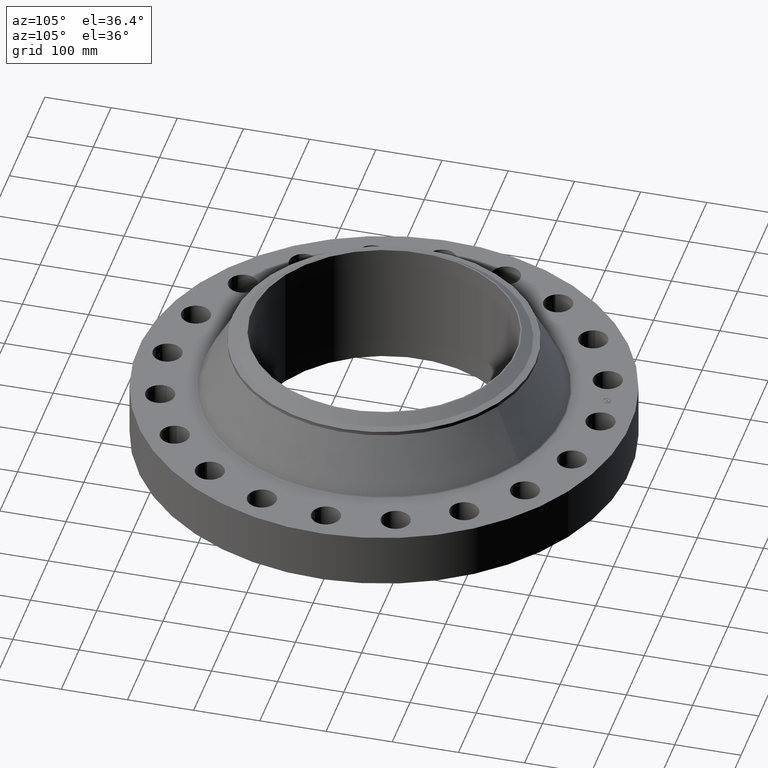
[diagram: clean part render]
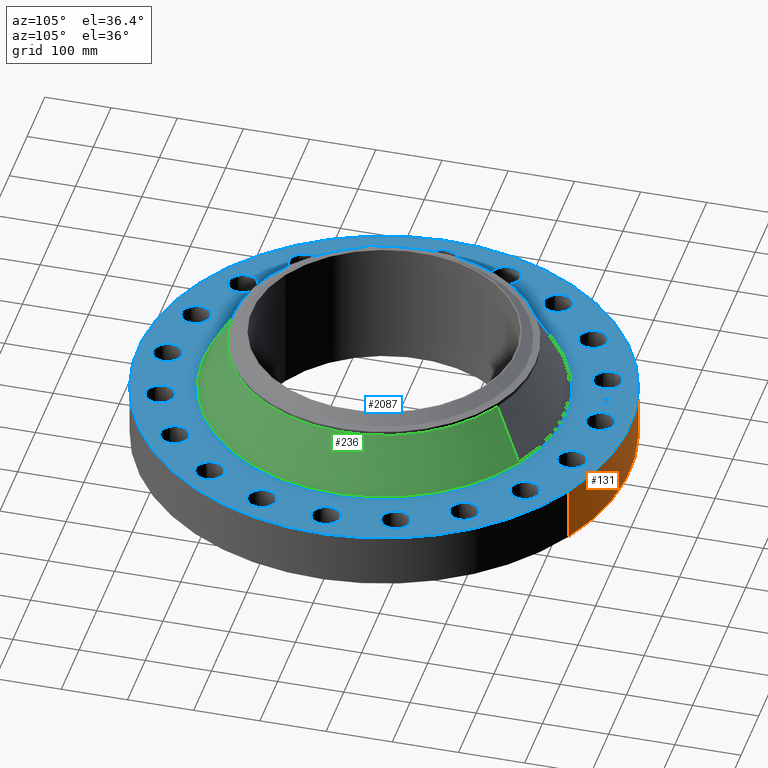
[diagram: same view with three faces highlighted in distinct colors, each labeled with its STEP entity id]
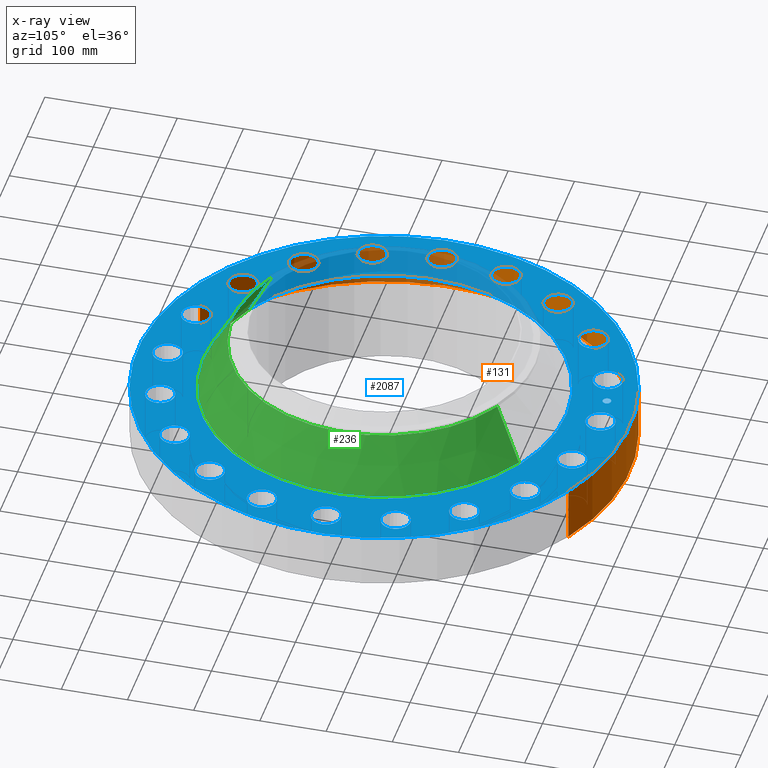
[diagram: x-ray of the same camera — body ghosted, the three highlighted faces saturated]
A machine part, auxiliary view with three faces highlighted in distinct colors.
The next image is the same camera in x-ray (body ghosted, the three faces saturated) — at least one of them is partly hidden behind the body in this view.
Their STEP definitions:

[orange] entity #131 — the highlighted cylindrical surface (partial cylindrical patch) has radius 371.475 mm, axis along (0, 0, -1).
#95=AXIS2_PLACEMENT_3D('Cylinder Axis2P3D',#92,#93,#94) ;
#99=AXIS2_PLACEMENT_3D('Circle Axis2P3D',#97,#98,$) ;
#115=AXIS2_PLACEMENT_3D('Circle Axis2P3D',#113,#114,$) ;
#92=CARTESIAN_POINT('Axis2P3D Location',(0.,0.,3.46850000001)) ;
#97=CARTESIAN_POINT('Axis2P3D Location',(0.,0.,1.67844740731E-015)) ;
#101=CARTESIAN_POINT('Vertex',(-7.01159850211,-12.8346449677,1.67844740731E-015)) ;
#103=CARTESIAN_POINT('Vertex',(7.01159850211,12.8346449677,1.67844740731E-015)) ;
#106=CARTESIAN_POINT('Line Origine',(-7.01159850211,-12.8346449677,1.62500000001)) ;
#110=CARTESIAN_POINT('Vertex',(-7.01159850211,-12.8346449677,3.25000000001)) ;
#113=CARTESIAN_POINT('Axis2P3D Location',(0.,0.,3.25000000001)) ;
#117=CARTESIAN_POINT('Vertex',(7.01159850211,12.8346449677,3.25000000001)) ;
#120=CARTESIAN_POINT('Line Origine',(7.01159850211,12.8346449677,1.62500000001)) ;
#93=DIRECTION('Axis2P3D Direction',(0.,0.,-0.0393700787402)) ;
#94=DIRECTION('Axis2P3D XDirection',(0.0188750212049,0.0345504945626,0.)) ;
#98=DIRECTION('Axis2P3D Direction',(0.,0.,-0.0393700787402)) ;
#107=DIRECTION('Vector Direction',(0.,0.,-0.0393700787402)) ;
#114=DIRECTION('Axis2P3D Direction',(0.,0.,-0.0393700787402)) ;
#121=DIRECTION('Vector Direction',(0.,0.,-0.0393700787402)) ;
#108=VECTOR('Line Direction',#107,0.0393700787402) ;
#122=VECTOR('Line Direction',#121,0.0393700787402) ;
#126=ORIENTED_EDGE('',*,*,#105,.F.) ;
#127=ORIENTED_EDGE('',*,*,#112,.T.) ;
#128=ORIENTED_EDGE('',*,*,#119,.T.) ;
#129=ORIENTED_EDGE('',*,*,#124,.F.) ;
#131=ADVANCED_FACE('PartBody',(#130),#96,.T.) ;
#100=CIRCLE('generated circle',#99,14.6250000001) ;
#116=CIRCLE('generated circle',#115,14.6250000001) ;
#96=CYLINDRICAL_SURFACE('generated cylinder',#95,14.6250000001) ;
#105=EDGE_CURVE('',#102,#104,#100,.T.) ;
#112=EDGE_CURVE('',#102,#111,#109,.F.) ;
#119=EDGE_CURVE('',#111,#118,#116,.T.) ;
#124=EDGE_CURVE('',#104,#118,#123,.F.) ;
#125=EDGE_LOOP('',(#126,#127,#128,#129)) ;
#130=FACE_OUTER_BOUND('',#125,.T.) ;
#109=LINE('Line',#106,#108) ;
#123=LINE('Line',#120,#122) ;
#102=VERTEX_POINT('',#101) ;
#104=VERTEX_POINT('',#103) ;
#111=VERTEX_POINT('',#110) ;
#118=VERTEX_POINT('',#117) ;

[blue] entity #2087 — the highlighted planar face has unit normal (0, 0, -1).
#65=AXIS2_PLACEMENT_3D('Circle Axis2P3D',#63,#64,$) ;
#82=AXIS2_PLACEMENT_3D('Circle Axis2P3D',#80,#81,$) ;
#115=AXIS2_PLACEMENT_3D('Circle Axis2P3D',#113,#114,$) ;
#139=AXIS2_PLACEMENT_3D('Circle Axis2P3D',#137,#138,$) ;
#156=AXIS2_PLACEMENT_3D('Circle Axis2P3D',#154,#155,$) ;
#191=AXIS2_PLACEMENT_3D('Circle Axis2P3D',#189,#190,$) ;
#948=AXIS2_PLACEMENT_3D('Circle Axis2P3D',#946,#947,$) ;
#960=AXIS2_PLACEMENT_3D('Circle Axis2P3D',#958,#959,$) ;
#991=AXIS2_PLACEMENT_3D('Circle Axis2P3D',#989,#990,$) ;
#1003=AXIS2_PLACEMENT_3D('Circle Axis2P3D',#1001,#1002,$) ;
#1034=AXIS2_PLACEMENT_3D('Circle Axis2P3D',#1032,#1033,$) ;
#1046=AXIS2_PLACEMENT_3D('Circle Axis2P3D',#1044,#1045,$) ;
#1077=AXIS2_PLACEMENT_3D('Circle Axis2P3D',#1075,#1076,$) ;
#1089=AXIS2_PLACEMENT_3D('Circle Axis2P3D',#1087,#1088,$) ;
#1120=AXIS2_PLACEMENT_3D('Circle Axis2P3D',#1118,#1119,$) ;
#1132=AXIS2_PLACEMENT_3D('Circle Axis2P3D',#1130,#1131,$) ;
#1163=AXIS2_PLACEMENT_3D('Circle Axis2P3D',#1161,#1162,$) ;
#1175=AXIS2_PLACEMENT_3D('Circle Axis2P3D',#1173,#1174,$) ;
#1206=AXIS2_PLACEMENT_3D('Circle Axis2P3D',#1204,#1205,$) ;
#1218=AXIS2_PLACEMENT_3D('Circle Axis2P3D',#1216,#1217,$) ;
#1249=AXIS2_PLACEMENT_3D('Circle Axis2P3D',#1247,#1248,$) ;
#1261=AXIS2_PLACEMENT_3D('Circle Axis2P3D',#1259,#1260,$) ;
#1292=AXIS2_PLACEMENT_3D('Circle Axis2P3D',#1290,#1291,$) ;
#1304=AXIS2_PLACEMENT_3D('Circle Axis2P3D',#1302,#1303,$) ;
#1335=AXIS2_PLACEMENT_3D('Circle Axis2P3D',#1333,#1334,$) ;
#1347=AXIS2_PLACEMENT_3D('Circle Axis2P3D',#1345,#1346,$) ;
#1378=AXIS2_PLACEMENT_3D('Circle Axis2P3D',#1376,#1377,$) ;
#1390=AXIS2_PLACEMENT_3D('Circle Axis2P3D',#1388,#1389,$) ;
#1421=AXIS2_PLACEMENT_3D('Circle Axis2P3D',#1419,#1420,$) ;
#1433=AXIS2_PLACEMENT_3D('Circle Axis2P3D',#1431,#1432,$) ;
#1464=AXIS2_PLACEMENT_3D('Circle Axis2P3D',#1462,#1463,$) ;
#1476=AXIS2_PLACEMENT_3D('Circle Axis2P3D',#1474,#1475,$) ;
#1507=AXIS2_PLACEMENT_3D('Circle Axis2P3D',#1505,#1506,$) ;
#1519=AXIS2_PLACEMENT_3D('Circle Axis2P3D',#1517,#1518,$) ;
#1550=AXIS2_PLACEMENT_3D('Circle Axis2P3D',#1548,#1549,$) ;
#1562=AXIS2_PLACEMENT_3D('Circle Axis2P3D',#1560,#1561,$) ;
#1593=AXIS2_PLACEMENT_3D('Circle Axis2P3D',#1591,#1592,$) ;
#1605=AXIS2_PLACEMENT_3D('Circle Axis2P3D',#1603,#1604,$) ;
#1636=AXIS2_PLACEMENT_3D('Circle Axis2P3D',#1634,#1635,$) ;
#1648=AXIS2_PLACEMENT_3D('Circle Axis2P3D',#1646,#1647,$) ;
#1679=AXIS2_PLACEMENT_3D('Circle Axis2P3D',#1677,#1678,$) ;
#1691=AXIS2_PLACEMENT_3D('Circle Axis2P3D',#1689,#1690,$) ;
#1722=AXIS2_PLACEMENT_3D('Circle Axis2P3D',#1720,#1721,$) ;
#1734=AXIS2_PLACEMENT_3D('Circle Axis2P3D',#1732,#1733,$) ;
#1979=AXIS2_PLACEMENT_3D('Plane Axis2P3D',#1976,#1977,#1978) ;
#2071=AXIS2_PLACEMENT_3D('Circle Axis2P3D',#2069,#2070,$) ;
#2080=AXIS2_PLACEMENT_3D('Circle Axis2P3D',#2078,#2079,$) ;
#46=CARTESIAN_POINT('Vertex',(-0.767884741657,13.2944973463,3.25000000001)) ;
#60=CARTESIAN_POINT('Vertex',(0.767884741657,12.4555026538,3.25000000001)) ;
#63=CARTESIAN_POINT('Axis2P3D Location',(0.,12.8750000001,3.25000000001)) ;
#80=CARTESIAN_POINT('Axis2P3D Location',(0.,12.8750000001,3.25000000001)) ;
#110=CARTESIAN_POINT('Vertex',(-7.01159850211,-12.8346449677,3.25000000001)) ;
#113=CARTESIAN_POINT('Axis2P3D Location',(0.,0.,3.25000000001)) ;
#117=CARTESIAN_POINT('Vertex',(7.01159850211,12.8346449677,3.25000000001)) ;
#137=CARTESIAN_POINT('Axis2P3D Location',(0.,0.,3.25000000001)) ;
#154=CARTESIAN_POINT('Axis2P3D Location',(0.,0.,3.25000000001)) ;
#158=CARTESIAN_POINT('Vertex',(5.18782275217,9.49624585027,3.25000000001)) ;
#160=CARTESIAN_POINT('Vertex',(-5.18782275217,-9.49624585027,3.25000000001)) ;
#189=CARTESIAN_POINT('Axis2P3D Location',(0.,0.,3.25000000001)) ;
#936=CARTESIAN_POINT('Vertex',(-3.37792382437,-12.881107767,3.25000000001)) ;
#943=CARTESIAN_POINT('Vertex',(-4.57926378081,-11.6085975277,3.25000000001)) ;
#946=CARTESIAN_POINT('Axis2P3D Location',(-3.97859380259,-12.2448526473,3.25000000001)) ;
#958=CARTESIAN_POINT('Axis2P3D Location',(-3.97859380259,-12.2448526473,3.25000000001)) ;
#979=CARTESIAN_POINT('Vertex',(7.19307767109,11.2068256115,3.25000000001)) ;
#986=CARTESIAN_POINT('Vertex',(7.9423925755,9.62536199378,3.25000000001)) ;
#989=CARTESIAN_POINT('Axis2P3D Location',(7.5677351233,10.4160938026,3.25000000001)) ;
#1001=CARTESIAN_POINT('Axis2P3D Location',(7.5677351233,10.4160938026,3.25000000001)) ;
#1022=CARTESIAN_POINT('Vertex',(-7.19307767109,-11.2068256115,3.25000000001)) ;
#1029=CARTESIAN_POINT('Vertex',(-7.9423925755,-9.62536199378,3.25000000001)) ;
#1032=CARTESIAN_POINT('Axis2P3D Location',(-7.5677351233,-10.4160938026,3.25000000001)) ;
#1044=CARTESIAN_POINT('Axis2P3D Location',(-7.5677351233,-10.4160938026,3.25000000001)) ;
#1065=CARTESIAN_POINT('Vertex',(10.3041229582,8.43554128254,3.25000000001)) ;
#1072=CARTESIAN_POINT('Vertex',(10.528064647,6.69992896405,3.25000000001)) ;
#1075=CARTESIAN_POINT('Axis2P3D Location',(10.4160938026,7.5677351233,3.25000000001)) ;
#1087=CARTESIAN_POINT('Axis2P3D Location',(10.4160938026,7.5677351233,3.25000000001)) ;
#1108=CARTESIAN_POINT('Vertex',(-10.3041229582,-8.43554128254,3.25000000001)) ;
#1115=CARTESIAN_POINT('Vertex',(-10.528064647,-6.69992896405,3.25000000001)) ;
#1118=CARTESIAN_POINT('Axis2P3D Location',(-10.4160938026,-7.5677351233,3.25000000001)) ;
#1130=CARTESIAN_POINT('Axis2P3D Location',(-10.4160938026,-7.5677351233,3.25000000001)) ;
#1151=CARTESIAN_POINT('Vertex',(12.4065288972,4.83852739901,3.25000000001)) ;
#1158=CARTESIAN_POINT('Vertex',(12.0831763975,3.11866020618,3.25000000001)) ;
#1161=CARTESIAN_POINT('Axis2P3D Location',(12.2448526473,3.97859380259,3.25000000001)) ;
#1173=CARTESIAN_POINT('Axis2P3D Location',(12.2448526473,3.97859380259,3.25000000001)) ;
#1194=CARTESIAN_POINT('Vertex',(-12.4065288972,-4.83852739901,3.25000000001)) ;
#1201=CARTESIAN_POINT('Vertex',(-12.0831763975,-3.11866020618,3.25000000001)) ;
#1204=CARTESIAN_POINT('Axis2P3D Location',(-12.2448526473,-3.97859380259,3.25000000001)) ;
#1216=CARTESIAN_POINT('Axis2P3D Location',(-12.2448526473,-3.97859380259,3.25000000001)) ;
#1237=CARTESIAN_POINT('Vertex',(13.2944973463,0.767884741657,3.25000000001)) ;
#1244=CARTESIAN_POINT('Vertex',(12.4555026538,-0.767884741657,3.25000000001)) ;
#1247=CARTESIAN_POINT('Axis2P3D Location',(12.8750000001,3.64719066538E-015,3.25000000001)) ;
#1259=CARTESIAN_POINT('Axis2P3D Location',(12.8750000001,3.64719066538E-015,3.25000000001)) ;
#1280=CARTESIAN_POINT('Vertex',(-13.2944973463,-0.767884741657,3.25000000001)) ;
#1287=CARTESIAN_POINT('Vertex',(-12.4555026538,0.767884741657,3.25000000001)) ;
#1290=CARTESIAN_POINT('Axis2P3D Location',(-12.8750000001,-1.38003962845E-014,3.25000000001)) ;
#1302=CARTESIAN_POINT('Axis2P3D Location',(-12.8750000001,-1.38003962845E-014,3.25000000001)) ;
#1323=CARTESIAN_POINT('Vertex',(12.881107767,-3.37792382437,3.25000000001)) ;
#1330=CARTESIAN_POINT('Vertex',(11.6085975277,-4.57926378081,3.25000000001)) ;
#1333=CARTESIAN_POINT('Axis2P3D Location',(12.2448526473,-3.97859380259,3.25000000001)) ;
#1345=CARTESIAN_POINT('Axis2P3D Location',(12.2448526473,-3.97859380259,3.25000000001)) ;
#1366=CARTESIAN_POINT('Vertex',(-12.881107767,3.37792382437,3.25000000001)) ;
#1373=CARTESIAN_POINT('Vertex',(-11.6085975277,4.57926378081,3.25000000001)) ;
#1376=CARTESIAN_POINT('Axis2P3D Location',(-12.2448526473,3.97859380259,3.25000000001)) ;
#1388=CARTESIAN_POINT('Axis2P3D Location',(-12.2448526473,3.97859380259,3.25000000001)) ;
#1409=CARTESIAN_POINT('Vertex',(11.2068256115,-7.19307767109,3.25000000001)) ;
#1416=CARTESIAN_POINT('Vertex',(9.62536199378,-7.9423925755,3.25000000001)) ;
#1419=CARTESIAN_POINT('Axis2P3D Location',(10.4160938026,-7.5677351233,3.25000000001)) ;
#1431=CARTESIAN_POINT('Axis2P3D Location',(10.4160938026,-7.5677351233,3.25000000001)) ;
#1452=CARTESIAN_POINT('Vertex',(-11.2068256115,7.19307767109,3.25000000001)) ;
#1459=CARTESIAN_POINT('Vertex',(-9.62536199378,7.9423925755,3.25000000001)) ;
#1462=CARTESIAN_POINT('Axis2P3D Location',(-10.4160938026,7.5677351233,3.25000000001)) ;
#1474=CARTESIAN_POINT('Axis2P3D Location',(-10.4160938026,7.5677351233,3.25000000001)) ;
#1495=CARTESIAN_POINT('Vertex',(8.43554128254,-10.3041229582,3.25000000001)) ;
#1502=CARTESIAN_POINT('Vertex',(6.69992896405,-10.528064647,3.25000000001)) ;
#1505=CARTESIAN_POINT('Axis2P3D Location',(7.5677351233,-10.4160938026,3.25000000001)) ;
#1517=CARTESIAN_POINT('Axis2P3D Location',(7.5677351233,-10.4160938026,3.25000000001)) ;
#1538=CARTESIAN_POINT('Vertex',(-8.43554128254,10.3041229582,3.25000000001)) ;
#1545=CARTESIAN_POINT('Vertex',(-6.69992896405,10.528064647,3.25000000001)) ;
#1548=CARTESIAN_POINT('Axis2P3D Location',(-7.5677351233,10.4160938026,3.25000000001)) ;
#1560=CARTESIAN_POINT('Axis2P3D Location',(-7.5677351233,10.4160938026,3.25000000001)) ;
#1581=CARTESIAN_POINT('Vertex',(4.83852739901,-12.4065288972,3.25000000001)) ;
#1588=CARTESIAN_POINT('Vertex',(3.11866020618,-12.0831763975,3.25000000001)) ;
#1591=CARTESIAN_POINT('Axis2P3D Location',(3.97859380259,-12.2448526473,3.25000000001)) ;
#1603=CARTESIAN_POINT('Axis2P3D Location',(3.97859380259,-12.2448526473,3.25000000001)) ;
#1624=CARTESIAN_POINT('Vertex',(-4.83852739901,12.4065288972,3.25000000001)) ;
#1631=CARTESIAN_POINT('Vertex',(-3.11866020618,12.0831763975,3.25000000001)) ;
#1634=CARTESIAN_POINT('Axis2P3D Location',(-3.97859380259,12.2448526473,3.25000000001)) ;
#1646=CARTESIAN_POINT('Axis2P3D Location',(-3.97859380259,12.2448526473,3.25000000001)) ;
#1667=CARTESIAN_POINT('Vertex',(0.767884741657,-13.2944973463,3.25000000001)) ;
#1674=CARTESIAN_POINT('Vertex',(-0.767884741657,-12.4555026538,3.25000000001)) ;
#1677=CARTESIAN_POINT('Axis2P3D Location',(7.29438133075E-015,-12.8750000001,3.25000000001)) ;
#1689=CARTESIAN_POINT('Axis2P3D Location',(7.29438133075E-015,-12.8750000001,3.25000000001)) ;
#1710=CARTESIAN_POINT('Vertex',(3.37792382437,12.881107767,3.25000000001)) ;
#1717=CARTESIAN_POINT('Vertex',(4.57926378081,11.6085975277,3.25000000001)) ;
#1720=CARTESIAN_POINT('Axis2P3D Location',(3.97859380259,12.2448526473,3.25000000001)) ;
#1732=CARTESIAN_POINT('Axis2P3D Location',(3.97859380259,12.2448526473,3.25000000001)) ;
#1976=CARTESIAN_POINT('Axis2P3D Location',(0.,14.6250000001,3.25000000001)) ;
#2069=CARTESIAN_POINT('Axis2P3D Location',(-2.0140937374,12.7164873852,3.25000000001)) ;
#2073=CARTESIAN_POINT('Vertex',(-2.2585466017,12.6777698551,3.25000000001)) ;
#2075=CARTESIAN_POINT('Vertex',(-1.7696408731,12.7552049153,3.25000000001)) ;
#2078=CARTESIAN_POINT('Axis2P3D Location',(-2.0140937374,12.7164873852,3.25000000001)) ;
#64=DIRECTION('Axis2P3D Direction',(0.,-0.,-0.0393700787402)) ;
#81=DIRECTION('Axis2P3D Direction',(0.,-0.,-0.0393700787402)) ;
#114=DIRECTION('Axis2P3D Direction',(0.,0.,-0.0393700787402)) ;
#138=DIRECTION('Axis2P3D Direction',(0.,0.,-0.0393700787402)) ;
#155=DIRECTION('Axis2P3D Direction',(0.,0.,-0.0393700787402)) ;
#190=DIRECTION('Axis2P3D Direction',(0.,0.,-0.0393700787402)) ;
#947=DIRECTION('Axis2P3D Direction',(0.,0.,-0.0393700787402)) ;
#959=DIRECTION('Axis2P3D Direction',(0.,0.,-0.0393700787402)) ;
#990=DIRECTION('Axis2P3D Direction',(0.,-0.,-0.0393700787402)) ;
#1002=DIRECTION('Axis2P3D Direction',(0.,-0.,-0.0393700787402)) ;
#1033=DIRECTION('Axis2P3D Direction',(0.,0.,-0.0393700787402)) ;
#1045=DIRECTION('Axis2P3D Direction',(0.,0.,-0.0393700787402)) ;
#1076=DIRECTION('Axis2P3D Direction',(0.,-0.,-0.0393700787402)) ;
#1088=DIRECTION('Axis2P3D Direction',(0.,-0.,-0.0393700787402)) ;
#1119=DIRECTION('Axis2P3D Direction',(0.,0.,-0.0393700787402)) ;
#1131=DIRECTION('Axis2P3D Direction',(0.,0.,-0.0393700787402)) ;
#1162=DIRECTION('Axis2P3D Direction',(0.,-0.,-0.0393700787402)) ;
#1174=DIRECTION('Axis2P3D Direction',(0.,-0.,-0.0393700787402)) ;
#1205=DIRECTION('Axis2P3D Direction',(0.,0.,-0.0393700787402)) ;
#1217=DIRECTION('Axis2P3D Direction',(0.,0.,-0.0393700787402)) ;
#1248=DIRECTION('Axis2P3D Direction',(0.,-0.,-0.0393700787402)) ;
#1260=DIRECTION('Axis2P3D Direction',(0.,-0.,-0.0393700787402)) ;
#1291=DIRECTION('Axis2P3D Direction',(0.,0.,-0.0393700787402)) ;
#1303=DIRECTION('Axis2P3D Direction',(0.,0.,-0.0393700787402)) ;
#1334=DIRECTION('Axis2P3D Direction',(-0.,0.,-0.0393700787402)) ;
#1346=DIRECTION('Axis2P3D Direction',(-0.,0.,-0.0393700787402)) ;
#1377=DIRECTION('Axis2P3D Direction',(0.,0.,-0.0393700787402)) ;
#1389=DIRECTION('Axis2P3D Direction',(0.,0.,-0.0393700787402)) ;
#1420=DIRECTION('Axis2P3D Direction',(-0.,0.,-0.0393700787402)) ;
#1432=DIRECTION('Axis2P3D Direction',(-0.,0.,-0.0393700787402)) ;
#1463=DIRECTION('Axis2P3D Direction',(0.,0.,-0.0393700787402)) ;
#1475=DIRECTION('Axis2P3D Direction',(0.,0.,-0.0393700787402)) ;
#1506=DIRECTION('Axis2P3D Direction',(-0.,0.,-0.0393700787402)) ;
#1518=DIRECTION('Axis2P3D Direction',(-0.,0.,-0.0393700787402)) ;
#1549=DIRECTION('Axis2P3D Direction',(0.,0.,-0.0393700787402)) ;
#1561=DIRECTION('Axis2P3D Direction',(0.,0.,-0.0393700787402)) ;
#1592=DIRECTION('Axis2P3D Direction',(-0.,0.,-0.0393700787402)) ;
#1604=DIRECTION('Axis2P3D Direction',(-0.,0.,-0.0393700787402)) ;
#1635=DIRECTION('Axis2P3D Direction',(0.,0.,-0.0393700787402)) ;
#1647=DIRECTION('Axis2P3D Direction',(0.,0.,-0.0393700787402)) ;
#1678=DIRECTION('Axis2P3D Direction',(-0.,0.,-0.0393700787402)) ;
#1690=DIRECTION('Axis2P3D Direction',(-0.,0.,-0.0393700787402)) ;
#1721=DIRECTION('Axis2P3D Direction',(0.,-0.,-0.0393700787402)) ;
#1733=DIRECTION('Axis2P3D Direction',(0.,-0.,-0.0393700787402)) ;
#1977=DIRECTION('Axis2P3D Direction',(0.,0.,-0.0393700787402)) ;
#1978=DIRECTION('Axis2P3D XDirection',(0.0393700787402,0.,0.)) ;
#2070=DIRECTION('Axis2P3D Direction',(0.,0.,-0.0393700787402)) ;
#2079=DIRECTION('Axis2P3D Direction',(0.,0.,-0.0393700787402)) ;
#1982=ORIENTED_EDGE('',*,*,#141,.F.) ;
#1983=ORIENTED_EDGE('',*,*,#119,.F.) ;
#1986=ORIENTED_EDGE('',*,*,#67,.T.) ;
#1987=ORIENTED_EDGE('',*,*,#84,.T.) ;
#1990=ORIENTED_EDGE('',*,*,#193,.T.) ;
#1991=ORIENTED_EDGE('',*,*,#162,.T.) ;
#1994=ORIENTED_EDGE('',*,*,#1736,.T.) ;
#1995=ORIENTED_EDGE('',*,*,#1724,.T.) ;
#1998=ORIENTED_EDGE('',*,*,#1005,.T.) ;
#1999=ORIENTED_EDGE('',*,*,#993,.T.) ;
#2002=ORIENTED_EDGE('',*,*,#1091,.T.) ;
#2003=ORIENTED_EDGE('',*,*,#1079,.T.) ;
#2006=ORIENTED_EDGE('',*,*,#1177,.T.) ;
#2007=ORIENTED_EDGE('',*,*,#1165,.T.) ;
#2010=ORIENTED_EDGE('',*,*,#1263,.T.) ;
#2011=ORIENTED_EDGE('',*,*,#1251,.T.) ;
#2014=ORIENTED_EDGE('',*,*,#1349,.T.) ;
#2015=ORIENTED_EDGE('',*,*,#1337,.T.) ;
#2018=ORIENTED_EDGE('',*,*,#1435,.T.) ;
#2019=ORIENTED_EDGE('',*,*,#1423,.T.) ;
#2022=ORIENTED_EDGE('',*,*,#1521,.T.) ;
#2023=ORIENTED_EDGE('',*,*,#1509,.T.) ;
#2026=ORIENTED_EDGE('',*,*,#1607,.T.) ;
#2027=ORIENTED_EDGE('',*,*,#1595,.T.) ;
#2030=ORIENTED_EDGE('',*,*,#1693,.T.) ;
#2031=ORIENTED_EDGE('',*,*,#1681,.T.) ;
#2034=ORIENTED_EDGE('',*,*,#962,.T.) ;
#2035=ORIENTED_EDGE('',*,*,#950,.T.) ;
#2038=ORIENTED_EDGE('',*,*,#1048,.T.) ;
#2039=ORIENTED_EDGE('',*,*,#1036,.T.) ;
#2042=ORIENTED_EDGE('',*,*,#1134,.T.) ;
#2043=ORIENTED_EDGE('',*,*,#1122,.T.) ;
#2046=ORIENTED_EDGE('',*,*,#1220,.T.) ;
#2047=ORIENTED_EDGE('',*,*,#1208,.T.) ;
#2050=ORIENTED_EDGE('',*,*,#1306,.T.) ;
#2051=ORIENTED_EDGE('',*,*,#1294,.T.) ;
#2054=ORIENTED_EDGE('',*,*,#1392,.T.) ;
#2055=ORIENTED_EDGE('',*,*,#1380,.T.) ;
#2058=ORIENTED_EDGE('',*,*,#1478,.T.) ;
#2059=ORIENTED_EDGE('',*,*,#1466,.T.) ;
#2062=ORIENTED_EDGE('',*,*,#1564,.T.) ;
#2063=ORIENTED_EDGE('',*,*,#1552,.T.) ;
#2066=ORIENTED_EDGE('',*,*,#1650,.T.) ;
#2067=ORIENTED_EDGE('',*,*,#1638,.T.) ;
#2084=ORIENTED_EDGE('',*,*,#2077,.T.) ;
#2085=ORIENTED_EDGE('',*,*,#2082,.T.) ;
#1988=FACE_BOUND('',#1985,.T.) ;
#1992=FACE_BOUND('',#1989,.T.) ;
#1996=FACE_BOUND('',#1993,.T.) ;
#2000=FACE_BOUND('',#1997,.T.) ;
#2004=FACE_BOUND('',#2001,.T.) ;
#2008=FACE_BOUND('',#2005,.T.) ;
#2012=FACE_BOUND('',#2009,.T.) ;
#2016=FACE_BOUND('',#2013,.T.) ;
#2020=FACE_BOUND('',#2017,.T.) ;
#2024=FACE_BOUND('',#2021,.T.) ;
#2028=FACE_BOUND('',#2025,.T.) ;
#2032=FACE_BOUND('',#2029,.T.) ;
#2036=FACE_BOUND('',#2033,.T.) ;
#2040=FACE_BOUND('',#2037,.T.) ;
#2044=FACE_BOUND('',#2041,.T.) ;
#2048=FACE_BOUND('',#2045,.T.) ;
#2052=FACE_BOUND('',#2049,.T.) ;
#2056=FACE_BOUND('',#2053,.T.) ;
#2060=FACE_BOUND('',#2057,.T.) ;
#2064=FACE_BOUND('',#2061,.T.) ;
#2068=FACE_BOUND('',#2065,.T.) ;
#2086=FACE_BOUND('',#2083,.T.) ;
#2087=ADVANCED_FACE('PartBody',(#1984,#1988,#1992,#1996,#2000,#2004,#2008,#2012,#2016,#2020,#2024,#2028,#2032,#2036,#2040,#2044,#2048,#2052,#2056,#2060,#2064,#2068,#2086),#1980,.F.) ;
#66=CIRCLE('generated circle',#65,0.875000000004) ;
#83=CIRCLE('generated circle',#82,0.875000000004) ;
#116=CIRCLE('generated circle',#115,14.6250000001) ;
#140=CIRCLE('generated circle',#139,14.6250000001) ;
#157=CIRCLE('generated circle',#156,10.8209144788) ;
#192=CIRCLE('generated circle',#191,10.8209144788) ;
#949=CIRCLE('generated circle',#948,0.875000000004) ;
#961=CIRCLE('generated circle',#960,0.875000000004) ;
#992=CIRCLE('generated circle',#991,0.875000000004) ;
#1004=CIRCLE('generated circle',#1003,0.875000000004) ;
#1035=CIRCLE('generated circle',#1034,0.875000000004) ;
#1047=CIRCLE('generated circle',#1046,0.875000000004) ;
#1078=CIRCLE('generated circle',#1077,0.875000000003) ;
#1090=CIRCLE('generated circle',#1089,0.875000000003) ;
#1121=CIRCLE('generated circle',#1120,0.875000000004) ;
#1133=CIRCLE('generated circle',#1132,0.875000000004) ;
#1164=CIRCLE('generated circle',#1163,0.875000000003) ;
#1176=CIRCLE('generated circle',#1175,0.875000000003) ;
#1207=CIRCLE('generated circle',#1206,0.875000000003) ;
#1219=CIRCLE('generated circle',#1218,0.875000000003) ;
#1250=CIRCLE('generated circle',#1249,0.875000000004) ;
#1262=CIRCLE('generated circle',#1261,0.875000000004) ;
#1293=CIRCLE('generated circle',#1292,0.875000000004) ;
#1305=CIRCLE('generated circle',#1304,0.875000000004) ;
#1336=CIRCLE('generated circle',#1335,0.875000000004) ;
#1348=CIRCLE('generated circle',#1347,0.875000000004) ;
#1379=CIRCLE('generated circle',#1378,0.875000000003) ;
#1391=CIRCLE('generated circle',#1390,0.875000000003) ;
#1422=CIRCLE('generated circle',#1421,0.875000000003) ;
#1434=CIRCLE('generated circle',#1433,0.875000000003) ;
#1465=CIRCLE('generated circle',#1464,0.875000000004) ;
#1477=CIRCLE('generated circle',#1476,0.875000000004) ;
#1508=CIRCLE('generated circle',#1507,0.875000000003) ;
#1520=CIRCLE('generated circle',#1519,0.875000000003) ;
#1551=CIRCLE('generated circle',#1550,0.875000000004) ;
#1563=CIRCLE('generated circle',#1562,0.875000000004) ;
#1594=CIRCLE('generated circle',#1593,0.875000000003) ;
#1606=CIRCLE('generated circle',#1605,0.875000000003) ;
#1637=CIRCLE('generated circle',#1636,0.875000000003) ;
#1649=CIRCLE('generated circle',#1648,0.875000000003) ;
#1680=CIRCLE('generated circle',#1679,0.875000000004) ;
#1692=CIRCLE('generated circle',#1691,0.875000000004) ;
#1723=CIRCLE('generated circle',#1722,0.875000000004) ;
#1735=CIRCLE('generated circle',#1734,0.875000000004) ;
#2072=CIRCLE('generated circle',#2071,0.247500000001) ;
#2081=CIRCLE('generated circle',#2080,0.247500000001) ;
#67=EDGE_CURVE('',#47,#61,#66,.T.) ;
#84=EDGE_CURVE('',#61,#47,#83,.T.) ;
#119=EDGE_CURVE('',#111,#118,#116,.T.) ;
#141=EDGE_CURVE('',#118,#111,#140,.T.) ;
#162=EDGE_CURVE('',#159,#161,#157,.T.) ;
#193=EDGE_CURVE('',#161,#159,#192,.T.) ;
#950=EDGE_CURVE('',#937,#944,#949,.T.) ;
#962=EDGE_CURVE('',#944,#937,#961,.T.) ;
#993=EDGE_CURVE('',#980,#987,#992,.T.) ;
#1005=EDGE_CURVE('',#987,#980,#1004,.T.) ;
#1036=EDGE_CURVE('',#1023,#1030,#1035,.T.) ;
#1048=EDGE_CURVE('',#1030,#1023,#1047,.T.) ;
#1079=EDGE_CURVE('',#1066,#1073,#1078,.T.) ;
#1091=EDGE_CURVE('',#1073,#1066,#1090,.T.) ;
#1122=EDGE_CURVE('',#1109,#1116,#1121,.T.) ;
#1134=EDGE_CURVE('',#1116,#1109,#1133,.T.) ;
#1165=EDGE_CURVE('',#1152,#1159,#1164,.T.) ;
#1177=EDGE_CURVE('',#1159,#1152,#1176,.T.) ;
#1208=EDGE_CURVE('',#1195,#1202,#1207,.T.) ;
#1220=EDGE_CURVE('',#1202,#1195,#1219,.T.) ;
#1251=EDGE_CURVE('',#1238,#1245,#1250,.T.) ;
#1263=EDGE_CURVE('',#1245,#1238,#1262,.T.) ;
#1294=EDGE_CURVE('',#1281,#1288,#1293,.T.) ;
#1306=EDGE_CURVE('',#1288,#1281,#1305,.T.) ;
#1337=EDGE_CURVE('',#1324,#1331,#1336,.T.) ;
#1349=EDGE_CURVE('',#1331,#1324,#1348,.T.) ;
#1380=EDGE_CURVE('',#1367,#1374,#1379,.T.) ;
#1392=EDGE_CURVE('',#1374,#1367,#1391,.T.) ;
#1423=EDGE_CURVE('',#1410,#1417,#1422,.T.) ;
#1435=EDGE_CURVE('',#1417,#1410,#1434,.T.) ;
#1466=EDGE_CURVE('',#1453,#1460,#1465,.T.) ;
#1478=EDGE_CURVE('',#1460,#1453,#1477,.T.) ;
#1509=EDGE_CURVE('',#1496,#1503,#1508,.T.) ;
#1521=EDGE_CURVE('',#1503,#1496,#1520,.T.) ;
#1552=EDGE_CURVE('',#1539,#1546,#1551,.T.) ;
#1564=EDGE_CURVE('',#1546,#1539,#1563,.T.) ;
#1595=EDGE_CURVE('',#1582,#1589,#1594,.T.) ;
#1607=EDGE_CURVE('',#1589,#1582,#1606,.T.) ;
#1638=EDGE_CURVE('',#1625,#1632,#1637,.T.) ;
#1650=EDGE_CURVE('',#1632,#1625,#1649,.T.) ;
#1681=EDGE_CURVE('',#1668,#1675,#1680,.T.) ;
#1693=EDGE_CURVE('',#1675,#1668,#1692,.T.) ;
#1724=EDGE_CURVE('',#1711,#1718,#1723,.T.) ;
#1736=EDGE_CURVE('',#1718,#1711,#1735,.T.) ;
#2077=EDGE_CURVE('',#2074,#2076,#2072,.T.) ;
#2082=EDGE_CURVE('',#2076,#2074,#2081,.T.) ;
#1981=EDGE_LOOP('',(#1982,#1983)) ;
#1985=EDGE_LOOP('',(#1986,#1987)) ;
#1989=EDGE_LOOP('',(#1990,#1991)) ;
#1993=EDGE_LOOP('',(#1994,#1995)) ;
#1997=EDGE_LOOP('',(#1998,#1999)) ;
#2001=EDGE_LOOP('',(#2002,#2003)) ;
#2005=EDGE_LOOP('',(#2006,#2007)) ;
#2009=EDGE_LOOP('',(#2010,#2011)) ;
#2013=EDGE_LOOP('',(#2014,#2015)) ;
#2017=EDGE_LOOP('',(#2018,#2019)) ;
#2021=EDGE_LOOP('',(#2022,#2023)) ;
#2025=EDGE_LOOP('',(#2026,#2027)) ;
#2029=EDGE_LOOP('',(#2030,#2031)) ;
#2033=EDGE_LOOP('',(#2034,#2035)) ;
#2037=EDGE_LOOP('',(#2038,#2039)) ;
#2041=EDGE_LOOP('',(#2042,#2043)) ;
#2045=EDGE_LOOP('',(#2046,#2047)) ;
#2049=EDGE_LOOP('',(#2050,#2051)) ;
#2053=EDGE_LOOP('',(#2054,#2055)) ;
#2057=EDGE_LOOP('',(#2058,#2059)) ;
#2061=EDGE_LOOP('',(#2062,#2063)) ;
#2065=EDGE_LOOP('',(#2066,#2067)) ;
#2083=EDGE_LOOP('',(#2084,#2085)) ;
#1984=FACE_OUTER_BOUND('',#1981,.T.) ;
#1980=PLANE('',#1979) ;
#47=VERTEX_POINT('',#46) ;
#61=VERTEX_POINT('',#60) ;
#111=VERTEX_POINT('',#110) ;
#118=VERTEX_POINT('',#117) ;
#159=VERTEX_POINT('',#158) ;
#161=VERTEX_POINT('',#160) ;
#937=VERTEX_POINT('',#936) ;
#944=VERTEX_POINT('',#943) ;
#980=VERTEX_POINT('',#979) ;
#987=VERTEX_POINT('',#986) ;
#1023=VERTEX_POINT('',#1022) ;
#1030=VERTEX_POINT('',#1029) ;
#1066=VERTEX_POINT('',#1065) ;
#1073=VERTEX_POINT('',#1072) ;
#1109=VERTEX_POINT('',#1108) ;
#1116=VERTEX_POINT('',#1115) ;
#1152=VERTEX_POINT('',#1151) ;
#1159=VERTEX_POINT('',#1158) ;
#1195=VERTEX_POINT('',#1194) ;
#1202=VERTEX_POINT('',#1201) ;
#1238=VERTEX_POINT('',#1237) ;
#1245=VERTEX_POINT('',#1244) ;
#1281=VERTEX_POINT('',#1280) ;
#1288=VERTEX_POINT('',#1287) ;
#1324=VERTEX_POINT('',#1323) ;
#1331=VERTEX_POINT('',#1330) ;
#1367=VERTEX_POINT('',#1366) ;
#1374=VERTEX_POINT('',#1373) ;
#1410=VERTEX_POINT('',#1409) ;
#1417=VERTEX_POINT('',#1416) ;
#1453=VERTEX_POINT('',#1452) ;
#1460=VERTEX_POINT('',#1459) ;
#1496=VERTEX_POINT('',#1495) ;
#1503=VERTEX_POINT('',#1502) ;
#1539=VERTEX_POINT('',#1538) ;
#1546=VERTEX_POINT('',#1545) ;
#1582=VERTEX_POINT('',#1581) ;
#1589=VERTEX_POINT('',#1588) ;
#1625=VERTEX_POINT('',#1624) ;
#1632=VERTEX_POINT('',#1631) ;
#1668=VERTEX_POINT('',#1667) ;
#1675=VERTEX_POINT('',#1674) ;
#1711=VERTEX_POINT('',#1710) ;
#1718=VERTEX_POINT('',#1717) ;
#2074=VERTEX_POINT('',#2073) ;
#2076=VERTEX_POINT('',#2075) ;

[green] entity #236 — the highlighted conical surface has half-angle 28.838 deg.
#172=AXIS2_PLACEMENT_3D('Circle Axis2P3D',#170,#171,$) ;
#209=AXIS2_PLACEMENT_3D('Cone Axis2P3D',#206,#207,#208) ;
#220=AXIS2_PLACEMENT_3D('Circle Axis2P3D',#218,#219,$) ;
#167=CARTESIAN_POINT('Vertex',(5.13742615947,9.40399550611,3.31212031925)) ;
#170=CARTESIAN_POINT('Axis2P3D Location',(0.,0.,3.31212031925)) ;
#174=CARTESIAN_POINT('Vertex',(-5.13742615947,-9.40399550611,3.31212031925)) ;
#206=CARTESIAN_POINT('Axis2P3D Location',(0.,0.,6.42827836615)) ;
#211=CARTESIAN_POINT('Line Origine',(4.72612800346,8.65111928158,4.8701993427)) ;
#215=CARTESIAN_POINT('Vertex',(4.31482984746,7.89824305704,6.42827836615)) ;
#218=CARTESIAN_POINT('Axis2P3D Location',(0.,0.,6.42827836615)) ;
#222=CARTESIAN_POINT('Vertex',(-4.31482984746,-7.89824305704,6.42827836615)) ;
#225=CARTESIAN_POINT('Line Origine',(-4.72612800346,-8.65111928158,4.8701993427)) ;
#171=DIRECTION('Axis2P3D Direction',(0.,0.,-0.0393700787402)) ;
#207=DIRECTION('Axis2P3D Direction',(0.,0.,-0.0393700787402)) ;
#208=DIRECTION('Axis2P3D XDirection',(-0.0188750212049,-0.0345504945626,0.)) ;
#212=DIRECTION('Vector Direction',(0.00910400168066,0.0166647632949,-0.034487764754)) ;
#219=DIRECTION('Axis2P3D Direction',(0.,0.,-0.0393700787402)) ;
#226=DIRECTION('Vector Direction',(-0.00910400168066,-0.0166647632949,-0.034487764754)) ;
#213=VECTOR('Line Direction',#212,0.0393700787402) ;
#227=VECTOR('Line Direction',#226,0.0393700787402) ;
#231=ORIENTED_EDGE('',*,*,#176,.F.) ;
#232=ORIENTED_EDGE('',*,*,#217,.T.) ;
#233=ORIENTED_EDGE('',*,*,#224,.T.) ;
#234=ORIENTED_EDGE('',*,*,#229,.F.) ;
#236=ADVANCED_FACE('PartBody',(#235),#210,.T.) ;
#173=CIRCLE('generated circle',#172,10.7157957718) ;
#221=CIRCLE('generated circle',#220,9.00000000004) ;
#210=CONICAL_SURFACE('Cone',#209,9.00000000004,0.503313387865) ;
#176=EDGE_CURVE('',#168,#175,#173,.T.) ;
#217=EDGE_CURVE('',#168,#216,#214,.F.) ;
#224=EDGE_CURVE('',#216,#223,#221,.T.) ;
#229=EDGE_CURVE('',#175,#223,#228,.F.) ;
#230=EDGE_LOOP('',(#231,#232,#233,#234)) ;
#235=FACE_OUTER_BOUND('',#230,.T.) ;
#214=LINE('Line',#211,#213) ;
#228=LINE('Line',#225,#227) ;
#168=VERTEX_POINT('',#167) ;
#175=VERTEX_POINT('',#174) ;
#216=VERTEX_POINT('',#215) ;
#223=VERTEX_POINT('',#222) ;